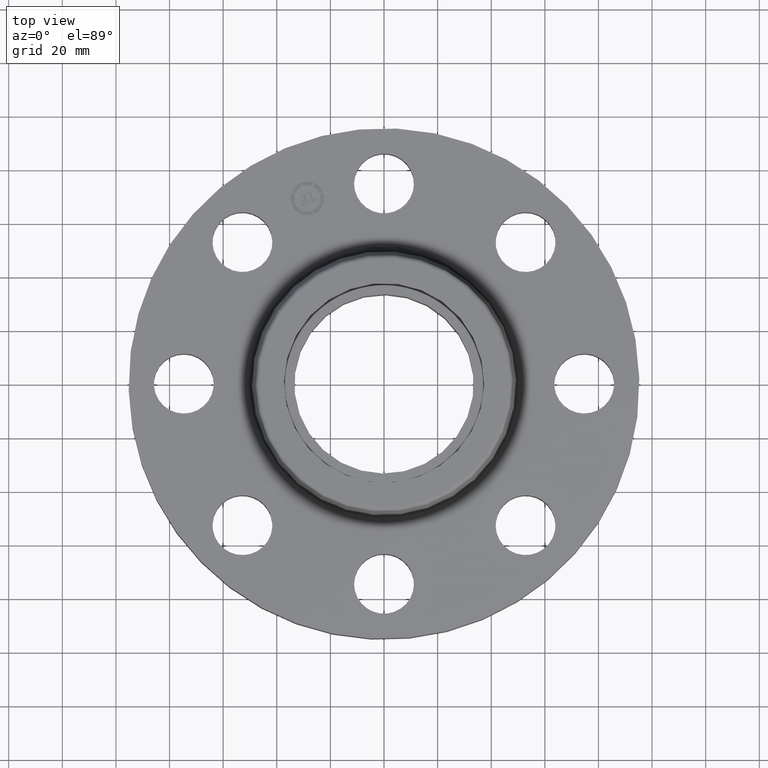
[diagram: clean part render]
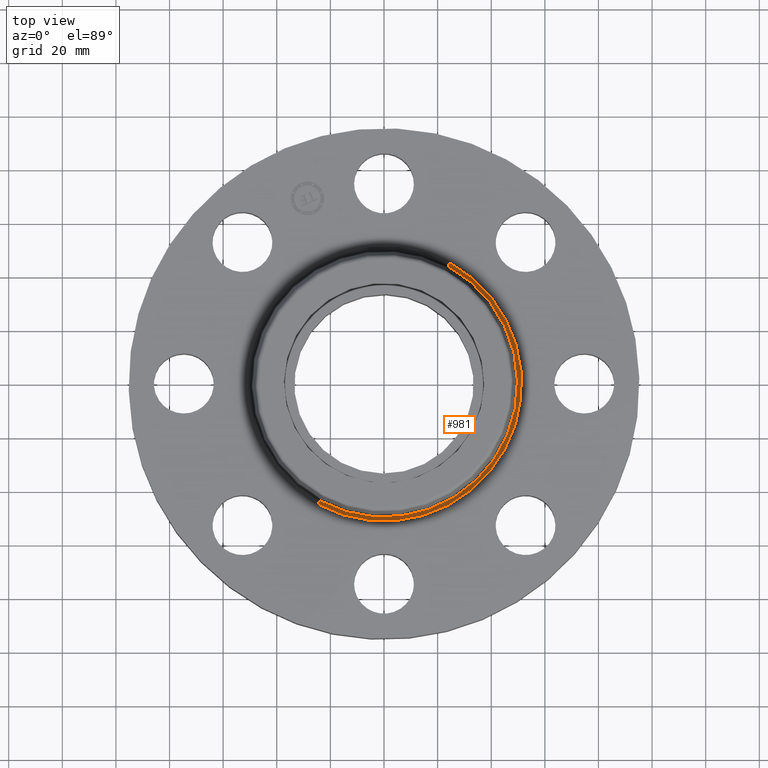
[diagram: same view with one face highlighted and labeled with its STEP entity id]
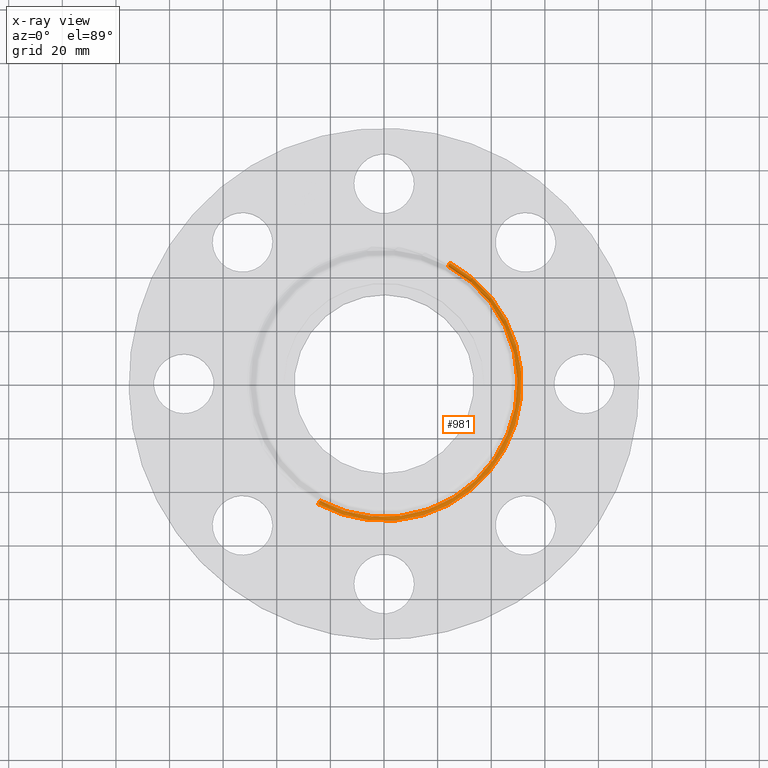
[diagram: x-ray of the same camera — body ghosted, the highlighted face saturated]
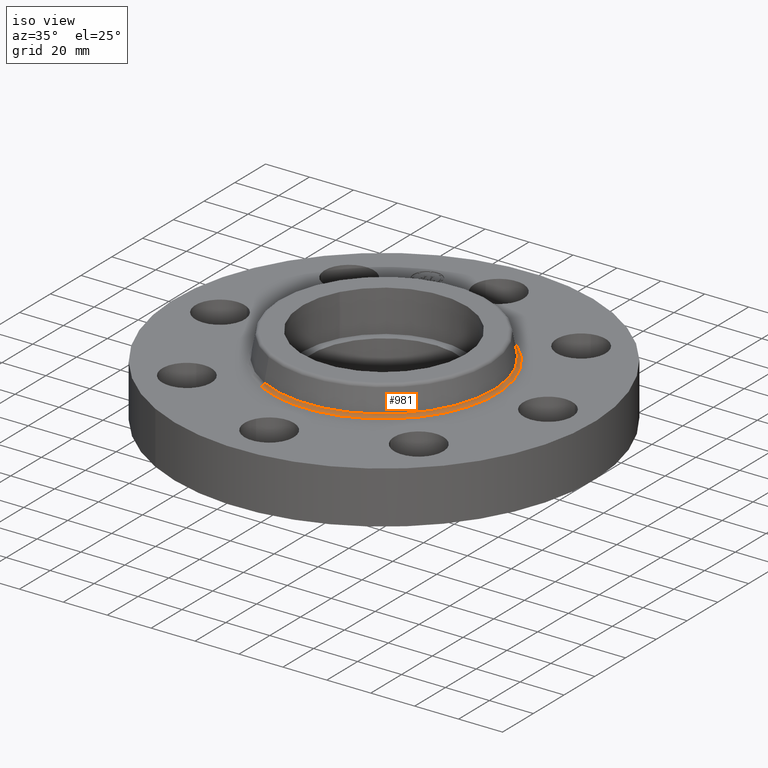
[diagram: same view with one face highlighted and labeled with its STEP entity id]
A machine part, top view. The second image highlights one B-rep face of the part: STEP entity #981.
The next image is the same camera in x-ray: the body ghosted, the highlighted face saturated — about 0% of this face is hidden behind the body in this view.
A second angle (iso view) of the same face is appended — the face is thin or edge-on in the first view.
In plain terms, the highlighted toroidal blend (fillet) surface has major radius 51.3168 mm and minor (blend) radius 1.524 mm.
Its self-contained STEP definition (entity closure, byte-faithful):
#945=AXIS2_PLACEMENT_3D('Torus Axis2P3D',#942,#943,#944) ;
#949=AXIS2_PLACEMENT_3D('Circle Axis2P3D',#947,#948,$) ;
#958=AXIS2_PLACEMENT_3D('Circle Axis2P3D',#956,#957,$) ;
#965=AXIS2_PLACEMENT_3D('Circle Axis2P3D',#963,#964,$) ;
#972=AXIS2_PLACEMENT_3D('Circle Axis2P3D',#970,#971,$) ;
#942=CARTESIAN_POINT('Axis2P3D Location',(0.,0.,1.)) ;
#947=CARTESIAN_POINT('Axis2P3D Location',(0.,0.,0.940000000004)) ;
#951=CARTESIAN_POINT('Vertex',(0.968605458611,1.77302039917,0.940000000004)) ;
#953=CARTESIAN_POINT('Vertex',(-0.968605458611,-1.77302039917,0.940000000004)) ;
#956=CARTESIAN_POINT('Axis2P3D Location',(0.968605458611,1.77302039917,1.)) ;
#960=CARTESIAN_POINT('Vertex',(0.940276939367,1.72116539252,0.989581109344)) ;
#963=CARTESIAN_POINT('Axis2P3D Location',(0.,0.,0.989581109344)) ;
#967=CARTESIAN_POINT('Vertex',(-0.940276939367,-1.72116539252,0.989581109344)) ;
#970=CARTESIAN_POINT('Axis2P3D Location',(-0.968605458611,-1.77302039917,1.)) ;
#943=DIRECTION('Axis2P3D Direction',(0.,0.,-0.0393700787402)) ;
#944=DIRECTION('Axis2P3D XDirection',(-0.0188750212049,-0.0345504945626,0.)) ;
#948=DIRECTION('Axis2P3D Direction',(0.,0.,-0.0393700787402)) ;
#957=DIRECTION('Axis2P3D Direction',(-0.0345504945626,0.0188750212049,0.)) ;
#964=DIRECTION('Axis2P3D Direction',(0.,0.,-0.0393700787402)) ;
#971=DIRECTION('Axis2P3D Direction',(0.0345504945626,-0.0188750212049,0.)) ;
#976=ORIENTED_EDGE('',*,*,#955,.F.) ;
#977=ORIENTED_EDGE('',*,*,#962,.T.) ;
#978=ORIENTED_EDGE('',*,*,#969,.T.) ;
#979=ORIENTED_EDGE('',*,*,#974,.F.) ;
#981=ADVANCED_FACE('PartBody',(#980),#946,.F.) ;
#950=CIRCLE('generated circle',#949,2.02034597788) ;
#959=CIRCLE('generated circle',#958,0.0600000000002) ;
#966=CIRCLE('generated circle',#965,1.9612575127) ;
#973=CIRCLE('generated circle',#972,0.0600000000002) ;
#946=TOROIDAL_SURFACE('homeo Torus',#945,2.02034597788,0.0600000000002) ;
#955=EDGE_CURVE('',#952,#954,#950,.T.) ;
#962=EDGE_CURVE('',#952,#961,#959,.T.) ;
#969=EDGE_CURVE('',#961,#968,#966,.T.) ;
#974=EDGE_CURVE('',#954,#968,#973,.T.) ;
#975=EDGE_LOOP('',(#976,#977,#978,#979)) ;
#980=FACE_OUTER_BOUND('',#975,.T.) ;
#952=VERTEX_POINT('',#951) ;
#954=VERTEX_POINT('',#953) ;
#961=VERTEX_POINT('',#960) ;
#968=VERTEX_POINT('',#967) ;